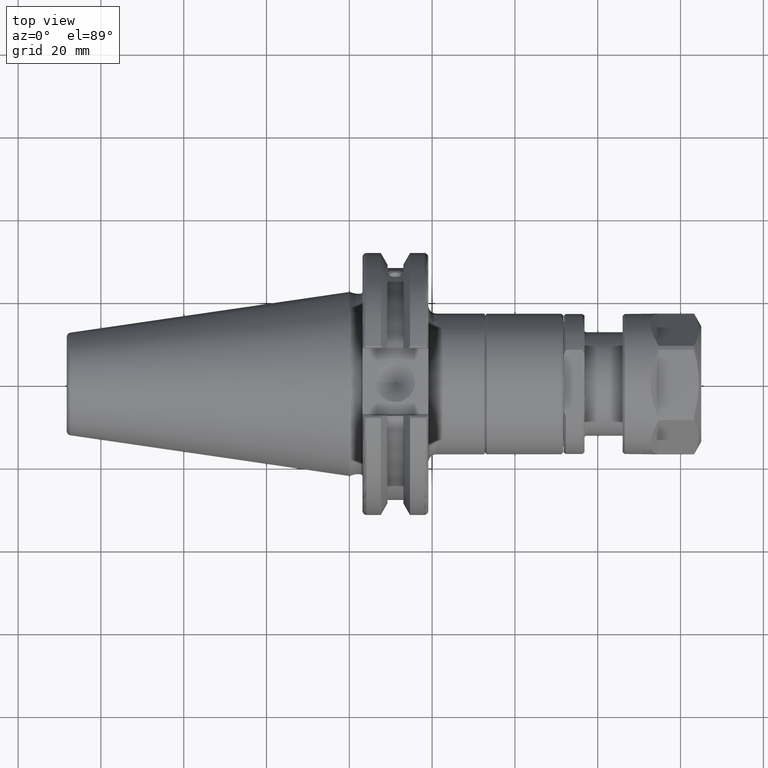
[diagram: clean part render]
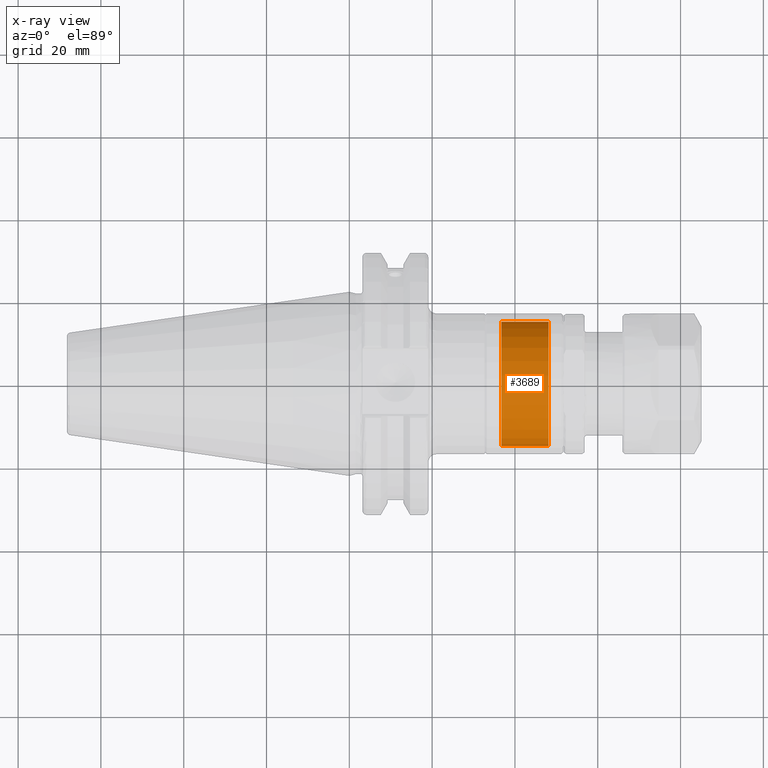
[diagram: x-ray — body ghosted, one internal face saturated and labeled with its STEP entity id]
A machine part, top view, then the same camera in x-ray: the body is ghosted and one INTERNAL B-rep face — a face not visible from any outside direction — is saturated and labeled: STEP entity #3689.
In plain terms, the highlighted cylindrical surface (bore or boss wall) has radius 15 mm, axis along (1, 0, 0).
Its self-contained STEP definition (entity closure, byte-faithful):
#296=CYLINDRICAL_SURFACE('',#4048,15.);
#371=FACE_OUTER_BOUND('',#581,.T.);
#581=EDGE_LOOP('',(#2562,#2563,#2564,#2565,#2566,#2567));
#842=LINE('',#5909,#1030);
#1030=VECTOR('',#4657,15.);
#1228=CIRCLE('',#4046,15.);
#1229=CIRCLE('',#4047,15.);
#1230=CIRCLE('',#4049,15.);
#1231=CIRCLE('',#4050,15.);
#1533=VERTEX_POINT('',#5902);
#1534=VERTEX_POINT('',#5904);
#1535=VERTEX_POINT('',#5908);
#1536=VERTEX_POINT('',#5910);
#1952=EDGE_CURVE('',#1533,#1534,#1228,.T.);
#1953=EDGE_CURVE('',#1534,#1533,#1229,.T.);
#1954=EDGE_CURVE('',#1534,#1535,#842,.T.);
#1955=EDGE_CURVE('',#1535,#1536,#1230,.T.);
#1956=EDGE_CURVE('',#1536,#1535,#1231,.T.);
#2562=ORIENTED_EDGE('',*,*,#1952,.F.);
#2563=ORIENTED_EDGE('',*,*,#1953,.F.);
#2564=ORIENTED_EDGE('',*,*,#1954,.T.);
#2565=ORIENTED_EDGE('',*,*,#1955,.T.);
#2566=ORIENTED_EDGE('',*,*,#1956,.T.);
#2567=ORIENTED_EDGE('',*,*,#1954,.F.);
#3689=ADVANCED_FACE('',(#371),#296,.T.);
#4046=AXIS2_PLACEMENT_3D('',#5905,#4651,#4652);
#4047=AXIS2_PLACEMENT_3D('',#5906,#4653,#4654);
#4048=AXIS2_PLACEMENT_3D('',#5907,#4655,#4656);
#4049=AXIS2_PLACEMENT_3D('',#5911,#4658,#4659);
#4050=AXIS2_PLACEMENT_3D('',#5912,#4660,#4661);
#4651=DIRECTION('center_axis',(1.,0.,0.));
#4652=DIRECTION('ref_axis',(0.,-1.,0.));
#4653=DIRECTION('center_axis',(1.,0.,0.));
#4654=DIRECTION('ref_axis',(0.,-1.,0.));
#4655=DIRECTION('center_axis',(1.,0.,0.));
#4656=DIRECTION('ref_axis',(0.,1.,0.));
#4657=DIRECTION('',(-1.,0.,0.));
#4658=DIRECTION('center_axis',(1.,0.,0.));
#4659=DIRECTION('ref_axis',(0.,0.,-1.));
#4660=DIRECTION('center_axis',(1.,0.,0.));
#4661=DIRECTION('ref_axis',(0.,0.,-1.));
#5902=CARTESIAN_POINT('',(48.1,15.,1.83697019872103E-15));
#5904=CARTESIAN_POINT('',(48.1,-15.,-1.83697019872103E-15));
#5905=CARTESIAN_POINT('Origin',(48.1,0.,0.));
#5906=CARTESIAN_POINT('Origin',(48.1,0.,0.));
#5907=CARTESIAN_POINT('Origin',(42.5,0.,0.));
#5908=CARTESIAN_POINT('',(36.7,-15.,-1.83697019872103E-15));
#5909=CARTESIAN_POINT('',(42.5,-15.,-1.83697019872103E-15));
#5910=CARTESIAN_POINT('',(36.7,15.,0.));
#5911=CARTESIAN_POINT('Origin',(36.7,0.,0.));
#5912=CARTESIAN_POINT('Origin',(36.7,0.,0.));